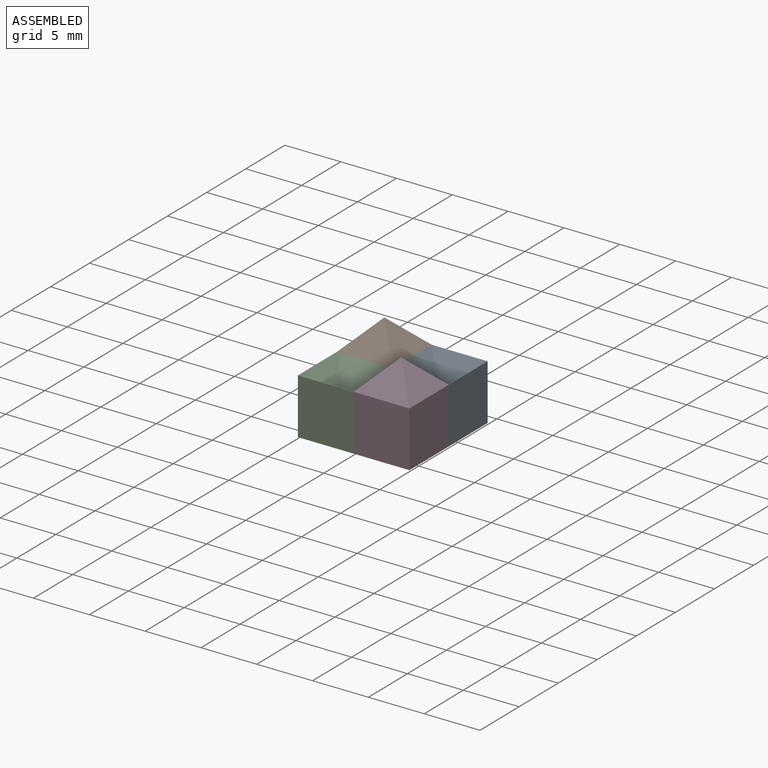
[diagram: assembled view]
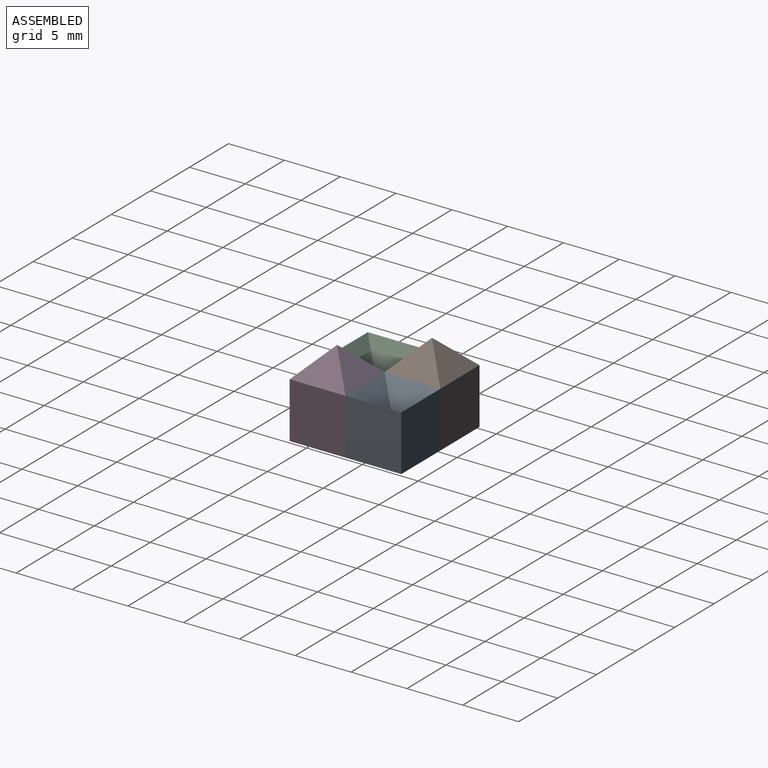
[diagram: assembled view, second angle]
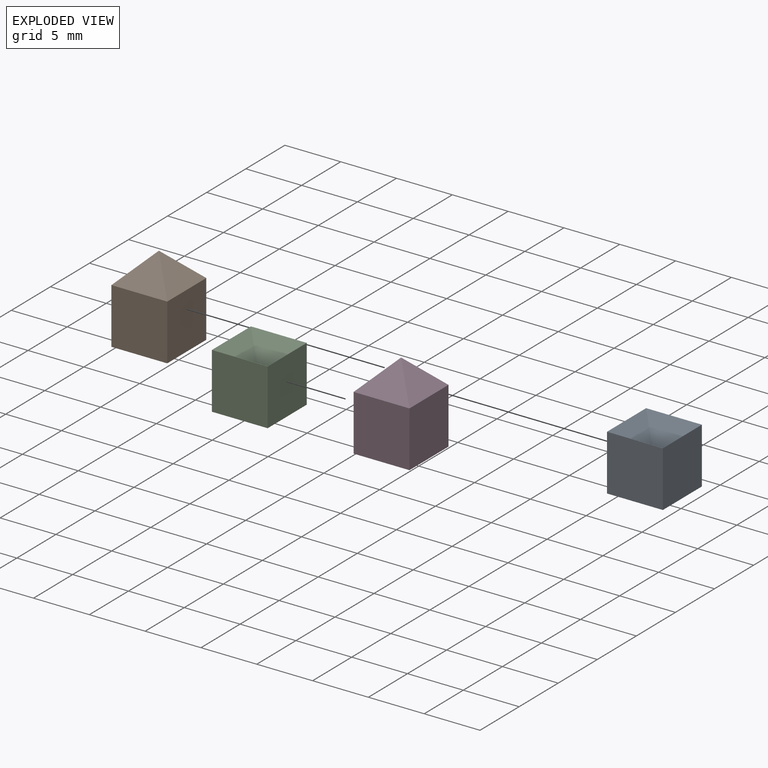
[diagram: exploded view]
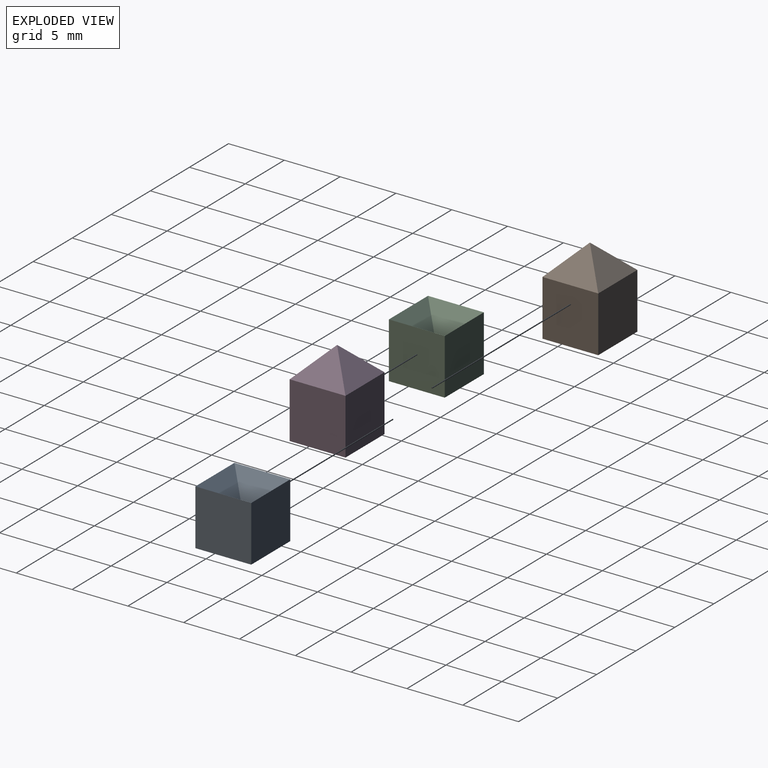
[diagram: exploded view, second angle]
ASSEMBLY  parts=4 mates=3
PART A: 9 faces, bbox 5x5x5 mm
  f0: plane 5x2.5mm, normal (0.71,0,0.71), area 8.8mm2, adj f5,f7,f8
  f1: plane 5x2.5mm, normal (-0.71,0,0.71), area 8.8mm2, adj f4,f7,f8
  f2: plane 5x5mm, normal (0,-1,0), area 25mm2, adj f4,f5,f6,f7
  f3: plane 5x5mm, normal (0,1,0), area 25mm2, adj f4,f5,f6,f8
  f4: plane 5x5mm, normal (1,0,0), area 25mm2, adj f1,f2,f3,f6
  f5: plane 5x5mm, normal (-1,0,0), area 25mm2, adj f0,f2,f3,f6
  f6: plane 5x5mm, normal (0,0,-1), area 25mm2, adj f2,f3,f4,f5
  f7: plane 5x2.5mm, normal (0,0.71,0.71), area 8.8mm2, adj f0,f1,f2
  f8: plane 5x2.5mm, normal (0,-0.71,0.71), area 8.8mm2, adj f0,f1,f3
PART B: 9 faces, bbox 5x5x7.5 mm
  f0: plane 5x2.5mm, normal (0,-0.71,0.71), area 8.8mm2, adj f4,f7,f8
  f1: plane 5x2.5mm, normal (0,0.71,0.71), area 8.8mm2, adj f5,f7,f8
  f2: plane 5x5mm, normal (-1,0,0), area 25mm2, adj f4,f5,f6,f8
  f3: plane 5x5mm, normal (1,0,0), area 25mm2, adj f4,f5,f6,f7
  f4: plane 5x5mm, normal (0,-1,0), area 25mm2, adj f0,f2,f3,f6
  f5: plane 5x5mm, normal (0,1,0), area 25mm2, adj f1,f2,f3,f6
  f6: plane 5x5mm, normal (0,0,-1), area 25mm2, adj f2,f3,f4,f5
  f7: plane 5x2.5mm, normal (0.71,0,0.71), area 8.8mm2, adj f0,f1,f3
  f8: plane 5x2.5mm, normal (-0.71,0,0.71), area 8.8mm2, adj f0,f1,f2
PART C: same geometry as A
PART D: same geometry as B
PLACE A t=(-2.35,6.1,-0.07)mm
PLACE B t=(-7.35,6.1,-0.07)mm
PLACE C t=(-7.35,1.1,-0.07)mm
PLACE D t=(-2.35,1.1,-0.07)mm
MATE fastened C.f4 <-> D.f2  axis (1,0,0) through (-4.85,1.1,2.43)mm
MATE fastened B.f3 <-> A.f5  axis (1,0,0) through (-4.85,6.1,2.43)mm
MATE fastened B.f4 <-> C.f3  axis (0,-1,0) through (-7.35,3.6,2.43)mm
